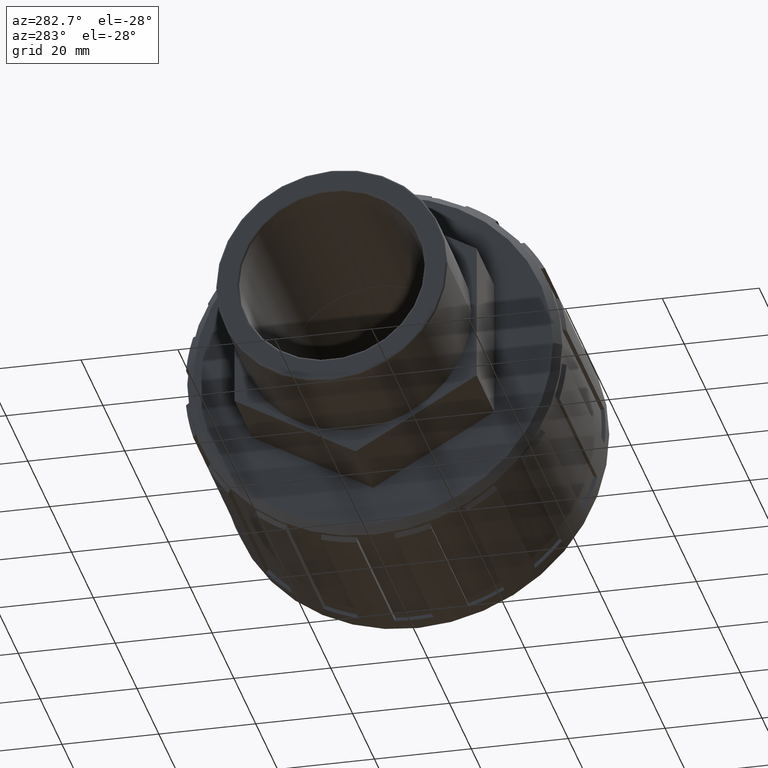
[diagram: clean part render]
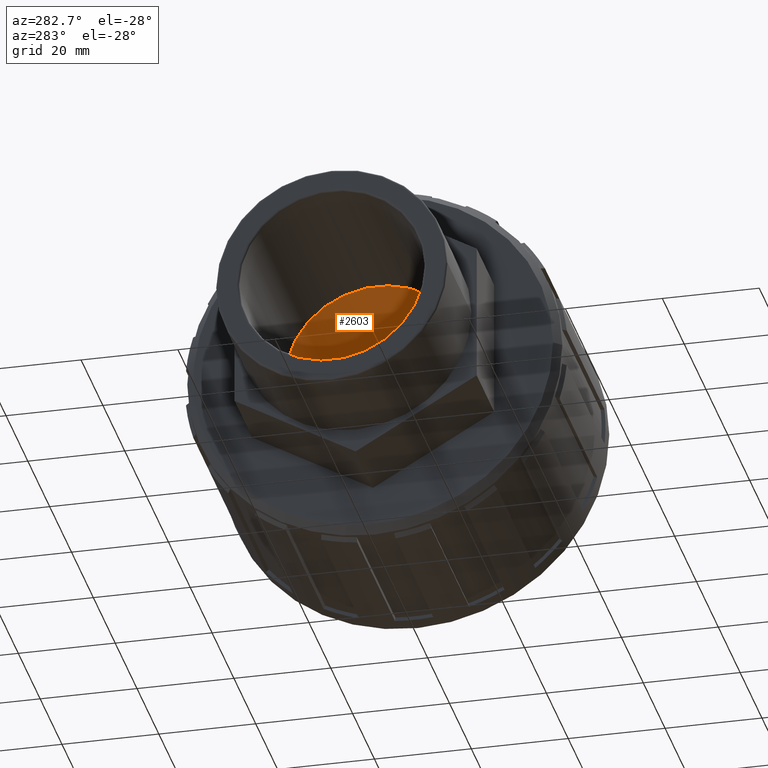
[diagram: same view with one face highlighted and labeled with its STEP entity id]
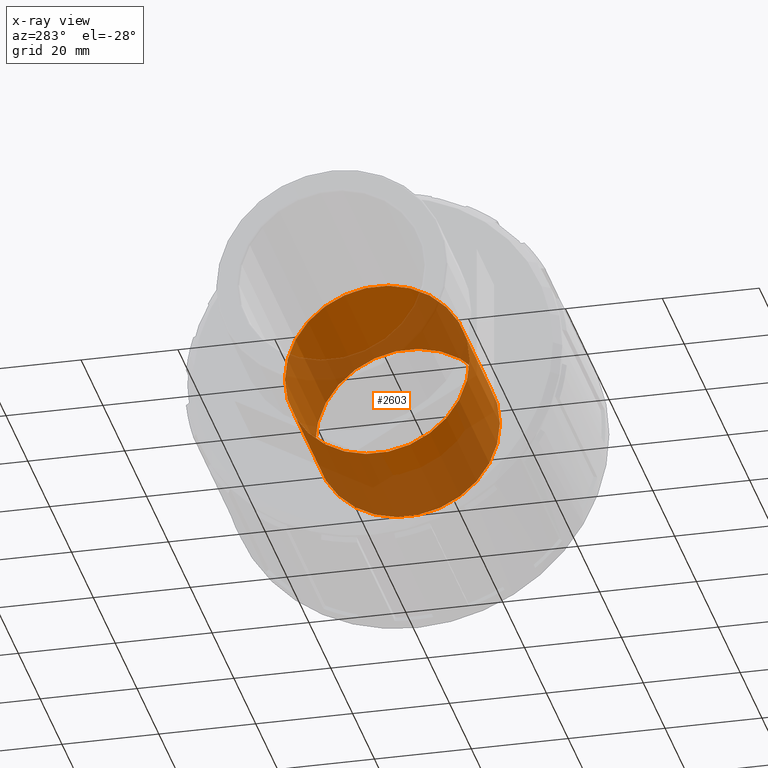
[diagram: x-ray of the same camera — body ghosted, the highlighted face saturated]
A machine part, auxiliary view. The second image highlights one B-rep face of the part: STEP entity #2603.
The next image is the same camera in x-ray: the body ghosted, the highlighted face saturated — about 69% of this face is hidden behind the body in this view.
In plain terms, the highlighted cylindrical surface (bore or boss wall) has radius 19.0591 mm, axis along (-1, -0, 0).
Its self-contained STEP definition (entity closure, byte-faithful):
#66=FACE_BOUND('',#515,.T.);
#89=CYLINDRICAL_SURFACE('',#2873,19.059125);
#218=CIRCLE('',#2872,19.059125);
#219=CIRCLE('',#2874,19.059125);
#357=FACE_OUTER_BOUND('',#514,.T.);
#514=EDGE_LOOP('',(#2367));
#515=EDGE_LOOP('',(#2368));
#1259=VERTEX_POINT('',#4423);
#1260=VERTEX_POINT('',#4426);
#1632=EDGE_CURVE('',#1259,#1259,#218,.T.);
#1633=EDGE_CURVE('',#1260,#1260,#219,.T.);
#2367=ORIENTED_EDGE('',*,*,#1632,.T.);
#2368=ORIENTED_EDGE('',*,*,#1633,.F.);
#2603=ADVANCED_FACE('',(#357,#66),#89,.F.);
#2872=AXIS2_PLACEMENT_3D('',#4424,#3649,#3650);
#2873=AXIS2_PLACEMENT_3D('',#4425,#3651,#3652);
#2874=AXIS2_PLACEMENT_3D('',#4427,#3653,#3654);
#3649=DIRECTION('center_axis',(-1.,-1.83697019872103E-16,0.));
#3650=DIRECTION('ref_axis',(0.,0.,1.));
#3651=DIRECTION('center_axis',(-1.,-1.83697019872103E-16,0.));
#3652=DIRECTION('ref_axis',(1.85799723803972E-16,-1.,0.));
#3653=DIRECTION('center_axis',(-1.,-1.83697019872103E-16,0.));
#3654=DIRECTION('ref_axis',(0.,0.,1.));
#4423=CARTESIAN_POINT('',(-6.2,-19.059125,0.));
#4424=CARTESIAN_POINT('Origin',(-6.20000000000001,7.6785354306539E-15,0.));
#4425=CARTESIAN_POINT('Origin',(7.70000000000001,1.02319240068761E-14,0.));
#4426=CARTESIAN_POINT('',(21.6,-19.059125,0.));
#4427=CARTESIAN_POINT('Origin',(21.6,1.27853125830984E-14,0.));